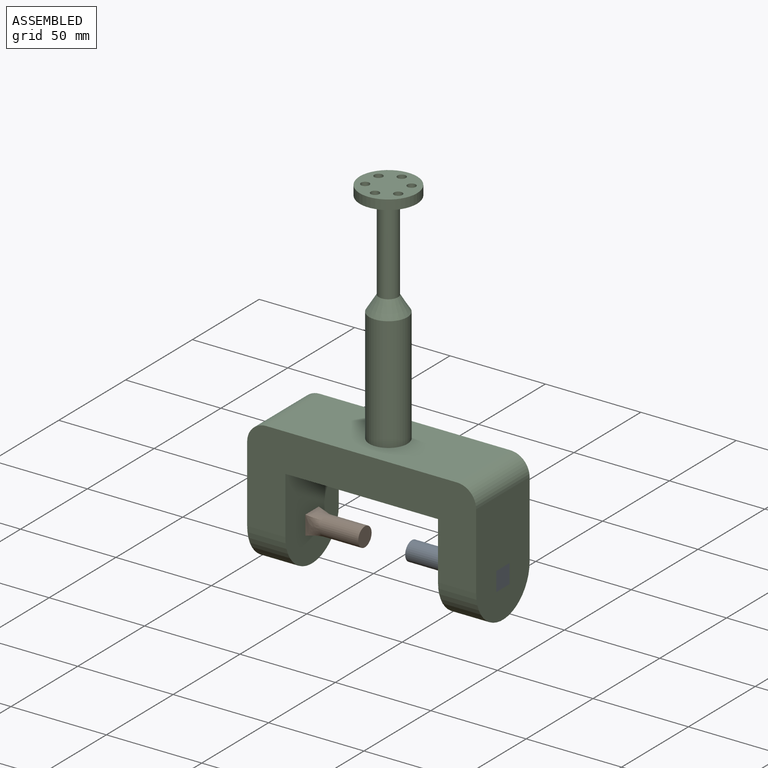
[diagram: assembled view]
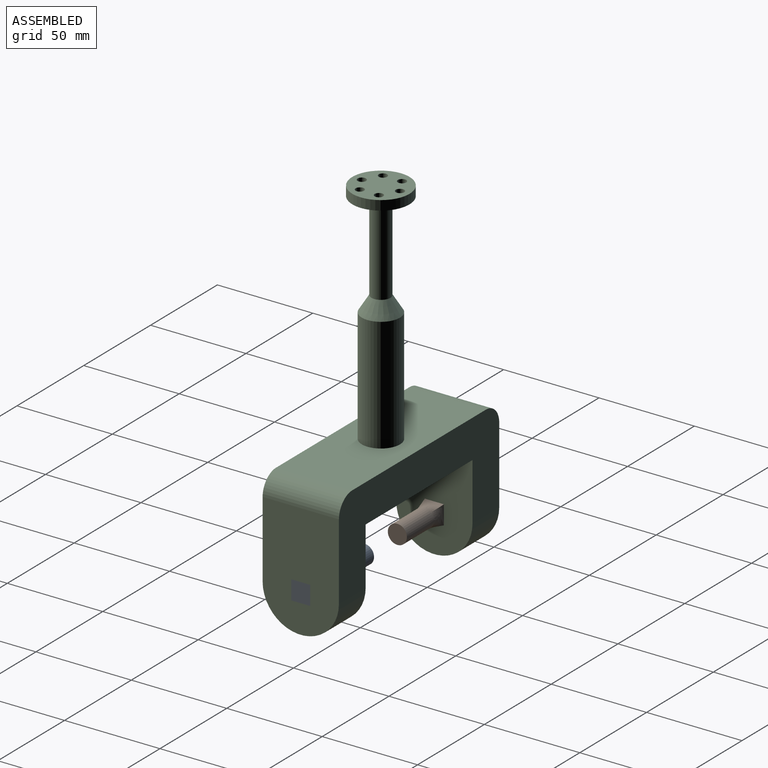
[diagram: assembled view, second angle]
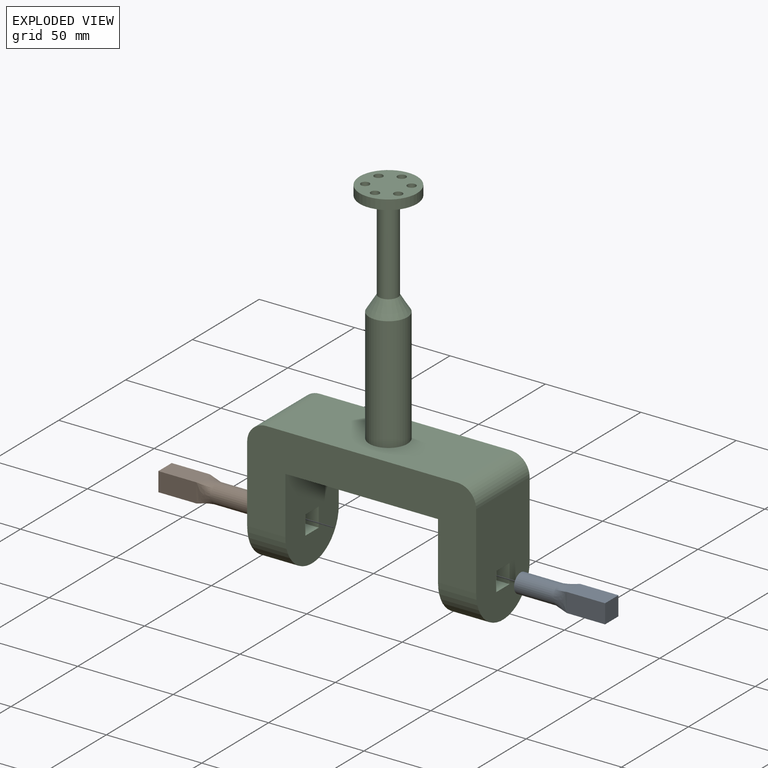
[diagram: exploded view]
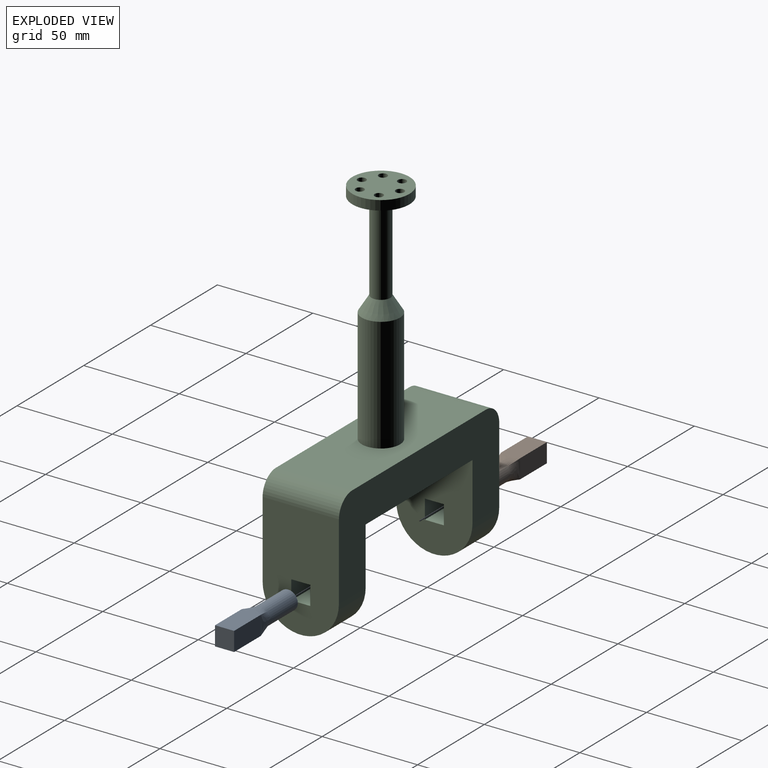
[diagram: exploded view, second angle]
ASSEMBLY  parts=3 mates=2
PART A: 14 faces, bbox 47.7x10x10 mm
  f0: plane 20x10mm, normal (0,1,0), area 200mm2, adj f1,f3,f4,f8
  f1: plane 20x10mm, normal (0,0,1), area 200mm2, adj f0,f2,f4,f5
  f2: plane 20x10mm, normal (0,-1,0), area 200mm2, adj f1,f3,f4,f6
  f3: plane 20x10mm, normal (0,0,-1), area 200mm2, adj f0,f2,f4,f7
  f4: plane 10x10mm, normal (-1,0,0), area 100mm2, adj f0,f1,f2,f3
  f5: bspline ~10x7.3mm, area 64.5mm2, adj f1,f6,f8,f9
  f6: bspline ~10x7.3mm, area 64.5mm2, adj f2,f5,f7,f10
  f7: bspline ~10x7.3mm, area 64.5mm2, adj f3,f6,f8,f11
  f8: bspline ~10x7.3mm, area 64.5mm2, adj f0,f5,f7,f12
  f9: extruded ~20.4x7.07mm, area 160.2mm2, adj f5,f10,f12,f13
  f10: extruded ~20.4x7.07mm, area 160.2mm2, adj f6,f9,f11,f13
  f11: extruded ~20.4x7.07mm, area 160.2mm2, adj f7,f10,f12,f13
  f12: extruded ~20.4x7.07mm, area 160.2mm2, adj f8,f9,f11,f13
  f13: plane 10x10mm, normal (1,0,0), area 78.5mm2, adj f9,f10,f11,f12
PART B: same geometry as A
PART C: 32 faces, bbox 120x40x190 mm
  f0: cylinder r=5mm len=46.93mm, axis (0,0,1), area 1474.3mm2, adj f21,f30
  f1: plane 50x40mm, normal (-1,0,0), area 1728.3mm2, adj f5,f8,f9,f16,f17,f18,f19,f20
  f2: plane 60x40mm, normal (-1,0,0), area 2128.3mm2, adj f8,f9,f10,f11,f12,f13,f14,f15
  f3: plane 50x40mm, normal (1,0,0), area 1728.3mm2, adj f5,f8,f9,f11,f12,f13,f14,f15
  f4: plane 60x40mm, normal (1,0,0), area 2128.3mm2, adj f7,f8,f9,f16,f17,f18,f19,f20
  f5: plane 80x40mm, normal (0,0,1), area 3200mm2, adj f1,f3,f8,f9
  f6: plane 100x40mm, normal (0,0,-1), area 3685.8mm2, adj f7,f8,f9,f10,f22
  f7: cylinder r=10mm len=40mm, axis (0,1,0), area 628.3mm2, adj f4,f6,f8,f9
  f8: plane 120x50mm, normal (0,-1,0), area 3557.1mm2, adj f1,f2,f3,f4,f5,f6,f7,f10
  f9: plane 120x50mm, normal (0,1,0), area 3557.1mm2, adj f1,f2,f3,f4,f5,f6,f7,f10
  f10: cylinder r=10mm len=40mm, axis (0,1,0), area 628.3mm2, adj f2,f6,f8,f9
  f11: plane 20x10mm, normal (0,1,0), area 200mm2, adj f2,f3,f12,f14
  f12: plane 20x10mm, normal (0,0,-1), area 200mm2, adj f2,f3,f11,f13
  f13: plane 20x10mm, normal (0,-1,0), area 200mm2, adj f2,f3,f12,f14
  f14: plane 20x10mm, normal (0,0,1), area 200mm2, adj f2,f3,f11,f13
  f15: cylinder r=20mm len=40mm, axis (1,0,0), area 1256.6mm2, adj f2,f3,f8,f9
  f16: plane 20x10mm, normal (0,0,1), area 200mm2, adj f1,f4,f17,f19
  f17: plane 20x10mm, normal (0,-1,0), area 200mm2, adj f1,f4,f16,f18
  f18: plane 20x10mm, normal (0,0,-1), area 200mm2, adj f1,f4,f17,f19
  f19: plane 20x10mm, normal (0,1,0), area 200mm2, adj f1,f4,f16,f18
  f20: cylinder r=20mm len=40mm, axis (1,0,0), area 1256.6mm2, adj f1,f4,f8,f9
  f21: cone r=10mm half-angle=31.8deg, axis (0,0,1), area 447.5mm2, adj f0,f22
  f22: cylinder r=10mm len=60mm, axis (0,0,1), area 3769.9mm2, adj f6,f21
  f23: cylinder r=2.2mm len=5mm, axis (0,0,-1), area 69.2mm2, adj f30,f31
  f24: cylinder r=2.2mm len=5mm, axis (0,0,-1), area 69.2mm2, adj f30,f31
  f25: cylinder r=2.2mm len=5mm, axis (0,0,-1), area 69.2mm2, adj f30,f31
  f26: cylinder r=2.2mm len=5mm, axis (0,0,-1), area 69.2mm2, adj f30,f31
  f27: cylinder r=2.2mm len=5mm, axis (0,0,-1), area 69.2mm2, adj f30,f31
  f28: cylinder r=2.2mm len=5mm, axis (0,0,-1), area 69.2mm2, adj f30,f31
  f29: cylinder r=15mm len=30mm, axis (0,0,-1), area 471.2mm2, adj f30,f31
  f30: plane 30x30mm, normal (0,0,1), area 536.8mm2, adj f0,f23,f24,f25,f26,f27,f28,f29
  f31: plane 30x30mm, normal (0,0,-1), area 615.4mm2, adj f23,f24,f25,f26,f27,f28,f29
PLACE A rot(axis=(0,1,0),180deg) t=(186.6,37.41,69.81)mm
PLACE B t=(-53.4,37.41,-30.19)mm
PLACE C rot(axis=(0,1,0),180deg) t=(66.6,37.41,69.81)mm
MATE fastened A.f4 <-> C.f2  axis (1,0,0) through (126.6,32.41,19.81)mm
MATE fastened B.f4 <-> C.f4  axis (-1,0,0) through (6.6,32.41,19.81)mm
